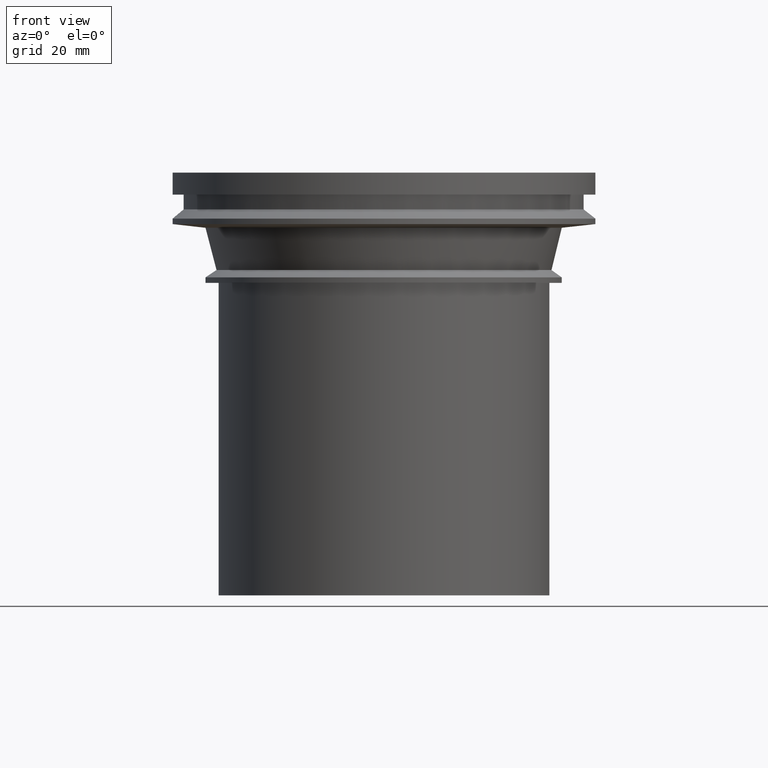
[diagram: clean part render]
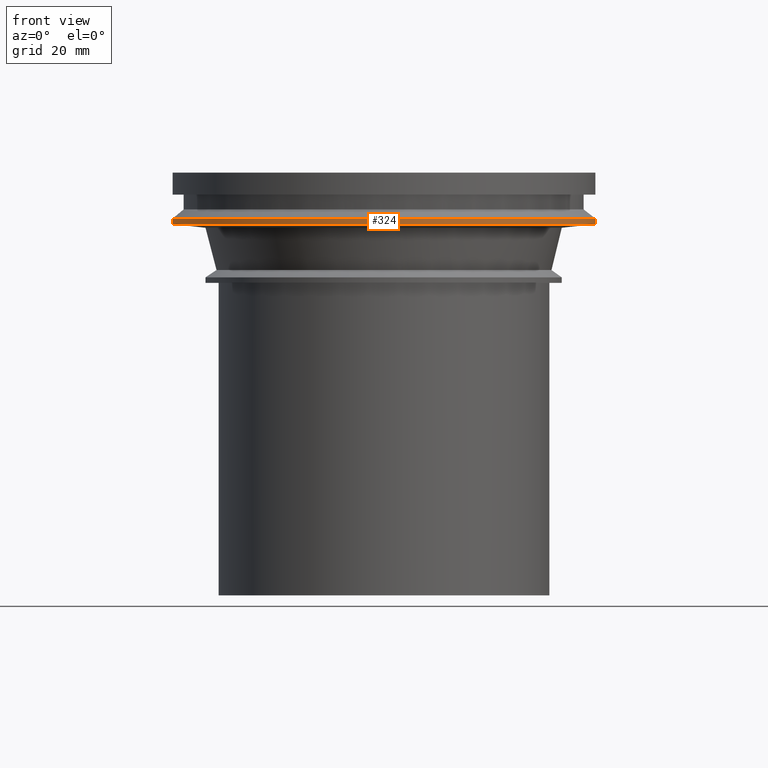
[diagram: same view with one face highlighted and labeled with its STEP entity id]
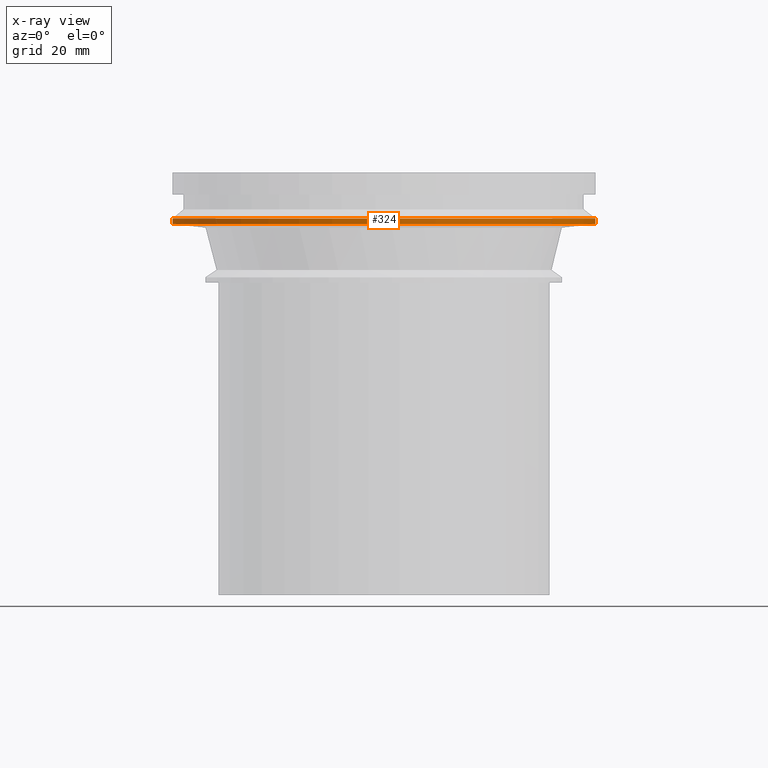
[diagram: x-ray of the same camera — body ghosted, the highlighted face saturated]
A machine part, front view. The second image highlights one B-rep face of the part: STEP entity #324.
The next image is the same camera in x-ray: the body ghosted, the highlighted face saturated — about 0% of this face is hidden behind the body in this view.
In plain terms, the highlighted cylindrical surface (bore or boss wall) has radius 57.5 mm, axis along (0, 0, -1).
Its self-contained STEP definition (entity closure, byte-faithful):
#45=CYLINDRICAL_SURFACE('',#403,57.5);
#95=ORIENTED_EDGE('',*,*,#126,.T.);
#96=ORIENTED_EDGE('',*,*,#125,.F.);
#125=EDGE_CURVE('',#152,#152,#179,.T.);
#126=EDGE_CURVE('',#153,#153,#180,.T.);
#152=VERTEX_POINT('',#598);
#153=VERTEX_POINT('',#601);
#179=CIRCLE('',#402,57.5);
#180=CIRCLE('',#404,57.5);
#230=EDGE_LOOP('',(#95));
#231=EDGE_LOOP('',(#96));
#284=FACE_BOUND('',#230,.T.);
#285=FACE_BOUND('',#231,.T.);
#324=ADVANCED_FACE('',(#284,#285),#45,.T.);
#402=AXIS2_PLACEMENT_3D('',#597,#509,#510);
#403=AXIS2_PLACEMENT_3D('',#599,#511,#512);
#404=AXIS2_PLACEMENT_3D('',#600,#513,#514);
#509=DIRECTION('',(0.,0.,-1.));
#510=DIRECTION('',(-1.,0.,0.));
#511=DIRECTION('',(0.,0.,-1.));
#512=DIRECTION('',(-1.,0.,0.));
#513=DIRECTION('',(0.,0.,-1.));
#514=DIRECTION('',(-1.,0.,0.));
#597=CARTESIAN_POINT('',(0.,0.,-14.));
#598=CARTESIAN_POINT('',(-57.5,0.,-14.));
#599=CARTESIAN_POINT('',(0.,0.,-50.));
#600=CARTESIAN_POINT('',(0.,0.,-12.5));
#601=CARTESIAN_POINT('',(-57.5,0.,-12.5));